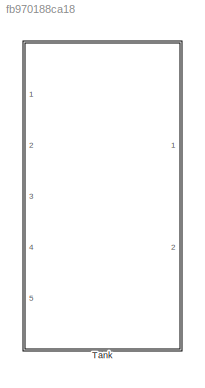
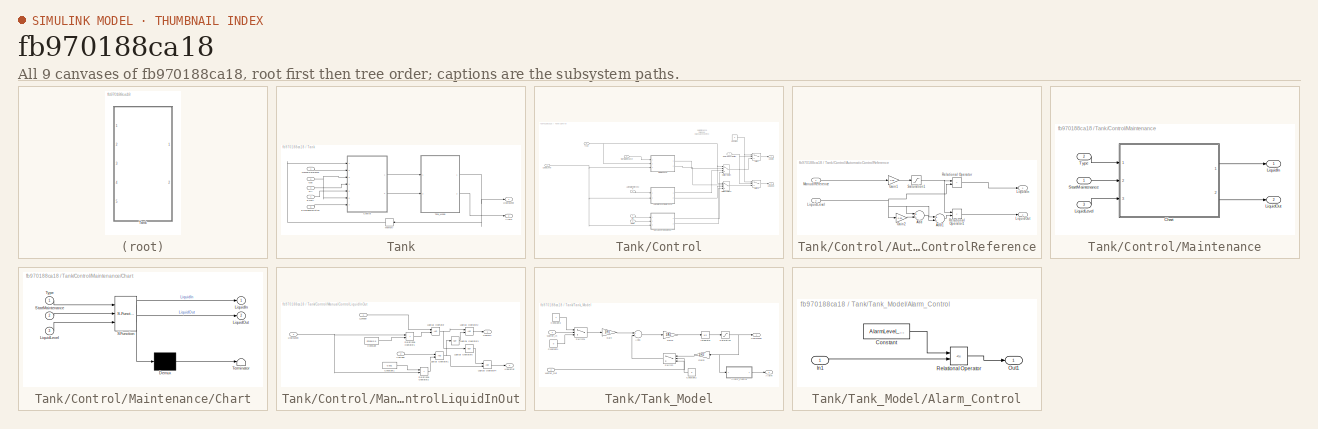
[diagram: thumbnail index - all 9 canvases of the model, root first then tree order]
MODEL slx_fb970188ca18
KIND model
CONFIG AbsTol = auto
CONFIG EnableMultiTasking = off
CONFIG FixedStep = 0.1
CONFIG MaxStep = auto
CONFIG MinStep = auto
CONFIG RelTol = 1e-3
CONFIG SampleTimeConstraint = Unconstrained
CONFIG Solver = FixedStepAuto
CONFIG SolverName = FixedStepAuto
CONFIG StartTime = 0.0
CONFIG StopTime = 300
BLOCK [SubSystem] Tank
  Ports = [5, 2]
  RequestExecContextInheritance = off
  Variant = off
BLOCK [Outport] Tank/Alarm
  IconDisplay = Port number
  Port = 2
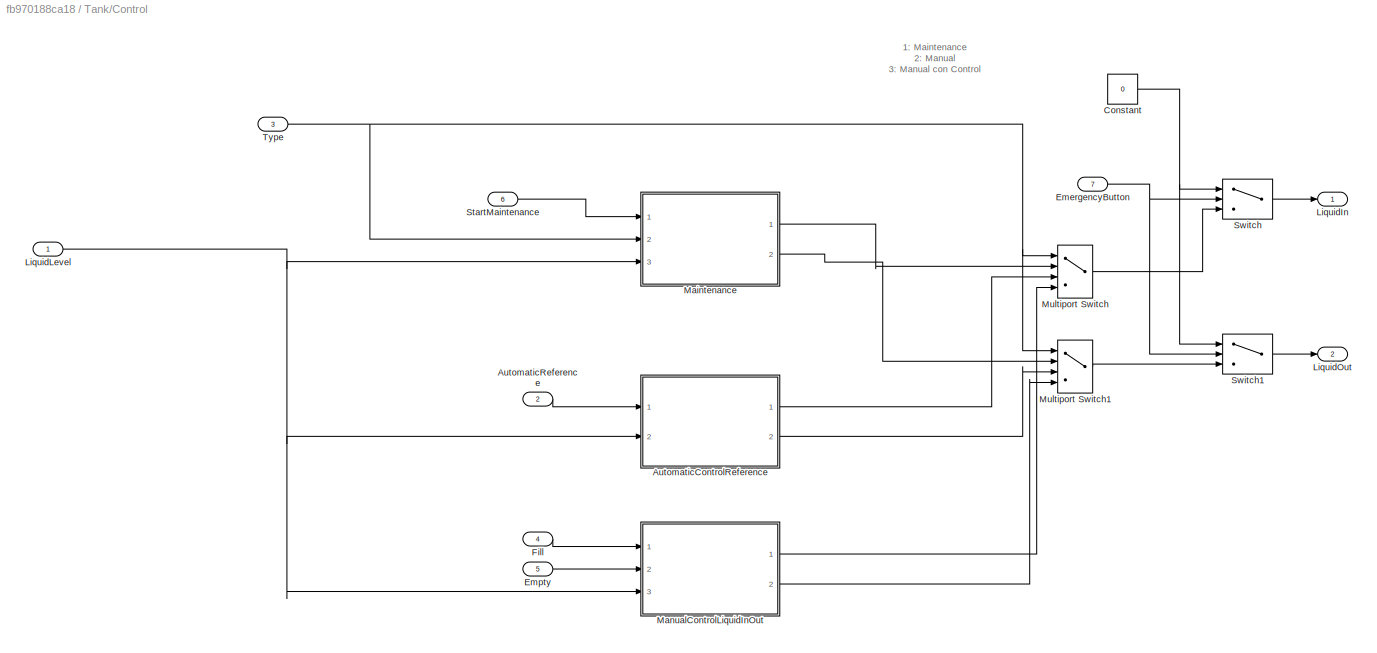
BLOCK [SubSystem] Tank/Control
  Ports = [7, 2]
  RequestExecContextInheritance = off
  Variant = off
BLOCK [SubSystem] Tank/Control/AutomaticControlReference
  Ports = [2, 2]
  RequestExecContextInheritance = off
  Variant = off
BLOCK [Sum] Tank/Control/AutomaticControlReference/Add
  InputSameDT = off
  Inputs = +-
  OutDataTypeStr = Inherit: Inherit via internal rule
  Ports = [2, 1]
  SaturateOnIntegerOverflow = off
BLOCK [Sum] Tank/Control/AutomaticControlReference/Add1
  InputSameDT = off
  Inputs = +-
  OutDataTypeStr = Inherit: Inherit via internal rule
  Ports = [2, 1]
  SaturateOnIntegerOverflow = off
BLOCK [Gain] Tank/Control/AutomaticControlReference/Gain1
  Gain = 0.95
  OutDataTypeStr = Inherit: Inherit via internal rule
  ParamDataTypeStr = Inherit: Inherit via internal rule
  SaturateOnIntegerOverflow = off
BLOCK [Gain] Tank/Control/AutomaticControlReference/Gain2
  Gain = 0.95
  OutDataTypeStr = Inherit: Inherit via internal rule
  ParamDataTypeStr = Inherit: Inherit via internal rule
  SaturateOnIntegerOverflow = off
BLOCK [Outport] Tank/Control/AutomaticControlReference/LiquidIn
  IconDisplay = Port number
BLOCK [Inport] Tank/Control/AutomaticControlReference/LiquidLevel
  IconDisplay = Port number
  Port = 2
BLOCK [Outport] Tank/Control/AutomaticControlReference/LiquidOut
  IconDisplay = Port number
  Port = 2
BLOCK [Inport] Tank/Control/AutomaticControlReference/ManualReference
  IconDisplay = Port number
BLOCK [RelationalOperator] Tank/Control/AutomaticControlReference/Relational Operator
  InputSameDT = off
  Operator = >
  OutDataTypeStr = boolean
  Ports = [2, 1]
  RndMeth = Simplest
BLOCK [RelationalOperator] Tank/Control/AutomaticControlReference/Relational Operator1
  InputSameDT = off
  Operator = <
  OutDataTypeStr = boolean
  Ports = [2, 1]
  RndMeth = Simplest
BLOCK [Saturate] Tank/Control/AutomaticControlReference/Saturation1
  InputPortMap = u0
  LowerLimit = 0
  Ports = [1, 1]
  UpperLimit = hmax*0.9
BLOCK [Inport] Tank/Control/AutomaticReference
  IconDisplay = Port number
  Port = 2
BLOCK [Constant] Tank/Control/Constant
  Value = 0
BLOCK [Inport] Tank/Control/EmergencyButton
  IconDisplay = Port number
  Port = 7
BLOCK [Inport] Tank/Control/Empty
  IconDisplay = Port number
  Port = 5
BLOCK [Inport] Tank/Control/Fill
  IconDisplay = Port number
  Port = 4
BLOCK [Outport] Tank/Control/LiquidIn
  IconDisplay = Port number
BLOCK [Inport] Tank/Control/LiquidLevel
  IconDisplay = Port number
BLOCK [Outport] Tank/Control/LiquidOut
  IconDisplay = Port number
  Port = 2
BLOCK [SubSystem] Tank/Control/Maintenance
  Ports = [3, 2]
  RequestExecContextInheritance = off
  Variant = off
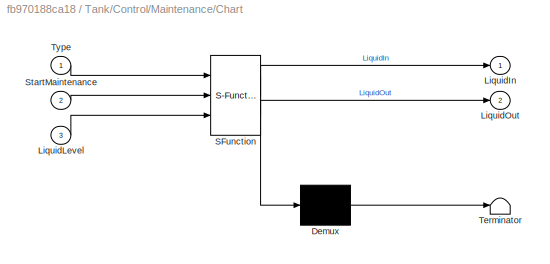
BLOCK [SubSystem] Tank/Control/Maintenance/Chart
  ErrorFcn = Stateflow.Translate.translate
  PermitHierarchicalResolution = ExplicitOnly
  Ports = [3, 2]
  RequestExecContextInheritance = off
  SFBlockType = Chart
  TreatAsAtomicUnit = on
  Variant = off
BLOCK [Demux] Tank/Control/Maintenance/Chart/ Demux 
  Outputs = 1
  Ports = [1, 1]
BLOCK [S-Function] Tank/Control/Maintenance/Chart/ SFunction 
  EnableBusSupport = on
  FunctionName = sf_sfun
  Parameters = hmax
  PortCounts = [3 3]
  Ports = [3, 3]
  SFcnIsStateOwnerBlock = off
  SFunctionDeploymentMode = off
  Tag = Stateflow S-Function TanksModel 3
BLOCK [Terminator] Tank/Control/Maintenance/Chart/ Terminator 
BLOCK [Outport] Tank/Control/Maintenance/Chart/LiquidIn
  IconDisplay = Port number
BLOCK [Inport] Tank/Control/Maintenance/Chart/LiquidLevel
  IconDisplay = Port number
  Port = 3
BLOCK [Outport] Tank/Control/Maintenance/Chart/LiquidOut
  IconDisplay = Port number
  Port = 2
BLOCK [Inport] Tank/Control/Maintenance/Chart/StartMaintenance
  IconDisplay = Port number
  Port = 2
BLOCK [Inport] Tank/Control/Maintenance/Chart/Type
  IconDisplay = Port number
BLOCK [Outport] Tank/Control/Maintenance/LiquidIn
  IconDisplay = Port number
BLOCK [Inport] Tank/Control/Maintenance/LiquidLevel
  IconDisplay = Port number
  Port = 3
BLOCK [Outport] Tank/Control/Maintenance/LiquidOut
  IconDisplay = Port number
  Port = 2
BLOCK [Inport] Tank/Control/Maintenance/StartMaintenance
  IconDisplay = Port number
BLOCK [Inport] Tank/Control/Maintenance/Type
  IconDisplay = Port number
  Port = 2
BLOCK [SubSystem] Tank/Control/ManualControlLiquidInOut
  Ports = [3, 2]
  RequestExecContextInheritance = off
  Variant = off
BLOCK [Constant] Tank/Control/ManualControlLiquidInOut/Constant
  Value = hmax*0.9
BLOCK [Constant] Tank/Control/ManualControlLiquidInOut/Constant1
  Value = 0.001
BLOCK [Inport] Tank/Control/ManualControlLiquidInOut/LLenado
  IconDisplay = Port number
BLOCK [Outport] Tank/Control/ManualControlLiquidInOut/LiquidIn
  IconDisplay = Port number
BLOCK [Inport] Tank/Control/ManualControlLiquidInOut/LiquidLevel
  IconDisplay = Port number
  Port = 3
BLOCK [Outport] Tank/Control/ManualControlLiquidInOut/LiquidOut
  IconDisplay = Port number
  Port = 2
BLOCK [Logic] Tank/Control/ManualControlLiquidInOut/Logical Operator
  AllPortsSameDT = off
  OutDataTypeStr = boolean
  Ports = [2, 1]
BLOCK [Logic] Tank/Control/ManualControlLiquidInOut/Logical Operator1
  AllPortsSameDT = off
  OutDataTypeStr = boolean
  Ports = [2, 1]
BLOCK [Logic] Tank/Control/ManualControlLiquidInOut/Logical Operator2
  AllPortsSameDT = off
  OutDataTypeStr = boolean
  Ports = [2, 1]
BLOCK [Logic] Tank/Control/ManualControlLiquidInOut/Logical Operator3
  AllPortsSameDT = off
  Operator = NOT
  OutDataTypeStr = boolean
  Ports = [1, 1]
BLOCK [Logic] Tank/Control/ManualControlLiquidInOut/Logical Operator4
  AllPortsSameDT = off
  OutDataTypeStr = boolean
  Ports = [2, 1]
BLOCK [Logic] Tank/Control/ManualControlLiquidInOut/Logical Operator5
  AllPortsSameDT = off
  Operator = NOT
  OutDataTypeStr = boolean
  Ports = [1, 1]
BLOCK [RelationalOperator] Tank/Control/ManualControlLiquidInOut/Relational Operator1
  InputSameDT = off
  Operator = <
  OutDataTypeStr = boolean
  Ports = [2, 1]
  RndMeth = Simplest
BLOCK [RelationalOperator] Tank/Control/ManualControlLiquidInOut/Relational Operator2
  InputSameDT = off
  Operator = <
  OutDataTypeStr = boolean
  Ports = [2, 1]
  RndMeth = Simplest
BLOCK [Inport] Tank/Control/ManualControlLiquidInOut/Vaciado
  IconDisplay = Port number
  Port = 2
BLOCK [MultiPortSwitch] Tank/Control/Multiport Switch
  InputSameDT = off
  Ports = [4, 1]
  SaturateOnIntegerOverflow = off
BLOCK [MultiPortSwitch] Tank/Control/Multiport Switch1
  InputSameDT = off
  Ports = [4, 1]
  SaturateOnIntegerOverflow = off
BLOCK [Inport] Tank/Control/StartMaintenance
  IconDisplay = Port number
  Port = 6
BLOCK [Switch] Tank/Control/Switch
  Criteria = u2 > Threshold
  InputSameDT = off
  SaturateOnIntegerOverflow = off
BLOCK [Switch] Tank/Control/Switch1
  Criteria = u2 > Threshold
  InputSameDT = off
  SaturateOnIntegerOverflow = off
BLOCK [Inport] Tank/Control/Type
  IconDisplay = Port number
  Port = 3
BLOCK [Inport] Tank/EmergencyButton
  IconDisplay = Port number
  Port = 5
BLOCK [Inport] Tank/Empty
  IconDisplay = Port number
  Port = 4
BLOCK [Inport] Tank/Fill
  IconDisplay = Port number
  Port = 3
BLOCK [Outport] Tank/LiquidLevel
  IconDisplay = Port number
BLOCK [Inport] Tank/ManualReference
  IconDisplay = Port number
BLOCK [Memory] Tank/Memory
BLOCK [SubSystem] Tank/Tank_Model
  Ports = [2, 2]
  RequestExecContextInheritance = off
  Variant = off
BLOCK [Sum] Tank/Tank_Model/Add1
  InputSameDT = off
  Inputs = +-
  OutDataTypeStr = Inherit: Inherit via internal rule
  Ports = [2, 1]
  SaturateOnIntegerOverflow = off
BLOCK [Outport] Tank/Tank_Model/Alarm
  IconDisplay = Port number
  Port = 2
BLOCK [SubSystem] Tank/Tank_Model/Alarm_Control
  Ports = [1, 1]
  RequestExecContextInheritance = off
  Variant = off
BLOCK [Constant] Tank/Tank_Model/Alarm_Control/Constant
  Value = AlarmLevel_NF
BLOCK [Inport] Tank/Tank_Model/Alarm_Control/In1
  IconDisplay = Port number
BLOCK [Outport] Tank/Tank_Model/Alarm_Control/Out1
  IconDisplay = Port number
BLOCK [RelationalOperator] Tank/Tank_Model/Alarm_Control/Relational Operator
  InputSameDT = off
  Operator = <=
  OutDataTypeStr = boolean
  Ports = [2, 1]
  RndMeth = Simplest
BLOCK [Constant] Tank/Tank_Model/Constant1
  Value = 0
BLOCK [Constant] Tank/Tank_Model/Constant2
  Value = 0
BLOCK [Constant] Tank/Tank_Model/Constant3
BLOCK [Gain] Tank/Tank_Model/Gain
  Gain = 1/R1
  OutDataTypeStr = Inherit: Inherit via internal rule
  ParamDataTypeStr = Inherit: Inherit via internal rule
  SaturateOnIntegerOverflow = off
BLOCK [Gain] Tank/Tank_Model/Gain1
  Gain = 1/A1
  OutDataTypeStr = Inherit: Inherit via internal rule
  ParamDataTypeStr = Inherit: Inherit via internal rule
  SaturateOnIntegerOverflow = off
BLOCK [Gain] Tank/Tank_Model/Gain2
  Gain = 1/R2
  OutDataTypeStr = Inherit: Inherit via internal rule
  ParamDataTypeStr = Inherit: Inherit via internal rule
  SaturateOnIntegerOverflow = off
BLOCK [Integrator] Tank/Tank_Model/Integrator
  Ports = [1, 1]
BLOCK [Outport] Tank/Tank_Model/LiquidLevel
  IconDisplay = Port number
BLOCK [Saturate] Tank/Tank_Model/Saturation
  InputPortMap = u0
  LowerLimit = 0
  Ports = [1, 1]
  UpperLimit = hmax
BLOCK [Switch] Tank/Tank_Model/Switch
  Criteria = u2 ~= 0
  InputSameDT = off
  SaturateOnIntegerOverflow = off
BLOCK [Switch] Tank/Tank_Model/Switch1
  Criteria = u2 ~= 0
  InputSameDT = off
  SaturateOnIntegerOverflow = off
BLOCK [Inport] Tank/Tank_Model/Watter_In
  IconDisplay = Port number
BLOCK [Inport] Tank/Tank_Model/Watter_Out
  IconDisplay = Port number
  Port = 2
BLOCK [Inport] Tank/Type
  IconDisplay = Port number
  Port = 2
ANNOTATION Tank/Control: 1: Maintenance 2: Manual 3: Manual con Control
LINE Tank/Control/AutomaticControlReference/Add1:1 -> Tank/Control/AutomaticControlReference/Relational Operator1:2
LINE Tank/Control/AutomaticControlReference/Add:1 -> Tank/Control/AutomaticControlReference/Add1:2
LINE Tank/Control/AutomaticControlReference/Gain1:1 -> Tank/Control/AutomaticControlReference/Saturation1:1
LINE Tank/Control/AutomaticControlReference/Gain2:1 -> Tank/Control/AutomaticControlReference/Add:2
NET Tank/Control/AutomaticControlReference/LiquidLevel:1 -> Tank/Control/AutomaticControlReference/Add1:1, Tank/Control/AutomaticControlReference/Add:1, Tank/Control/AutomaticControlReference/Gain2:1, Tank/Control/AutomaticControlReference/Relational Operator:2
LINE Tank/Control/AutomaticControlReference/ManualReference:1 -> Tank/Control/AutomaticControlReference/Gain1:1
LINE Tank/Control/AutomaticControlReference/Relational Operator1:1 -> Tank/Control/AutomaticControlReference/LiquidOut:1
LINE Tank/Control/AutomaticControlReference/Relational Operator:1 -> Tank/Control/AutomaticControlReference/LiquidIn:1
NET Tank/Control/AutomaticControlReference/Saturation1:1 -> Tank/Control/AutomaticControlReference/Relational Operator1:1, Tank/Control/AutomaticControlReference/Relational Operator:1
LINE Tank/Control/AutomaticControlReference:1 -> Tank/Control/Multiport Switch:3
LINE Tank/Control/AutomaticControlReference:2 -> Tank/Control/Multiport Switch1:3
LINE Tank/Control/AutomaticReference:1 -> Tank/Control/AutomaticControlReference:1
NET Tank/Control/Constant:1 -> Tank/Control/Switch1:1, Tank/Control/Switch:1
NET Tank/Control/EmergencyButton:1 -> Tank/Control/Switch1:2, Tank/Control/Switch:2
LINE Tank/Control/Empty:1 -> Tank/Control/ManualControlLiquidInOut:2
LINE Tank/Control/Fill:1 -> Tank/Control/ManualControlLiquidInOut:1
NET Tank/Control/LiquidLevel:1 -> Tank/Control/AutomaticControlReference:2, Tank/Control/Maintenance:3, Tank/Control/ManualControlLiquidInOut:3
LINE Tank/Control/Maintenance/Chart:1 -> Tank/Control/Maintenance/LiquidIn:1
LINE Tank/Control/Maintenance/Chart:2 -> Tank/Control/Maintenance/LiquidOut:1
LINE Tank/Control/Maintenance/LiquidLevel:1 -> Tank/Control/Maintenance/Chart:3
LINE Tank/Control/Maintenance/StartMaintenance:1 -> Tank/Control/Maintenance/Chart:2
LINE Tank/Control/Maintenance/Type:1 -> Tank/Control/Maintenance/Chart:1
LINE Tank/Control/Maintenance:1 -> Tank/Control/Multiport Switch:2
LINE Tank/Control/Maintenance:2 -> Tank/Control/Multiport Switch1:2
LINE Tank/Control/ManualControlLiquidInOut/Constant1:1 -> Tank/Control/ManualControlLiquidInOut/Relational Operator2:1
LINE Tank/Control/ManualControlLiquidInOut/Constant:1 -> Tank/Control/ManualControlLiquidInOut/Relational Operator1:2
LINE Tank/Control/ManualControlLiquidInOut/LLenado:1 -> Tank/Control/ManualControlLiquidInOut/Logical Operator:1
NET Tank/Control/ManualControlLiquidInOut/LiquidLevel:1 -> Tank/Control/ManualControlLiquidInOut/Relational Operator1:1, Tank/Control/ManualControlLiquidInOut/Relational Operator2:2
NET Tank/Control/ManualControlLiquidInOut/Logical Operator1:1 -> Tank/Control/ManualControlLiquidInOut/Logical Operator3:1, Tank/Control/ManualControlLiquidInOut/Logical Operator4:2
LINE Tank/Control/ManualControlLiquidInOut/Logical Operator2:1 -> Tank/Control/ManualControlLiquidInOut/LiquidIn:1
LINE Tank/Control/ManualControlLiquidInOut/Logical Operator3:1 -> Tank/Control/ManualControlLiquidInOut/Logical Operator2:2
LINE Tank/Control/ManualControlLiquidInOut/Logical Operator4:1 -> Tank/Control/ManualControlLiquidInOut/LiquidOut:1
LINE Tank/Control/ManualControlLiquidInOut/Logical Operator5:1 -> Tank/Control/ManualControlLiquidInOut/Logical Operator4:1
NET Tank/Control/ManualControlLiquidInOut/Logical Operator:1 -> Tank/Control/ManualControlLiquidInOut/Logical Operator2:1, Tank/Control/ManualControlLiquidInOut/Logical Operator5:1
LINE Tank/Control/ManualControlLiquidInOut/Relational Operator1:1 -> Tank/Control/ManualControlLiquidInOut/Logical Operator:2
LINE Tank/Control/ManualControlLiquidInOut/Relational Operator2:1 -> Tank/Control/ManualControlLiquidInOut/Logical Operator1:2
LINE Tank/Control/ManualControlLiquidInOut/Vaciado:1 -> Tank/Control/ManualControlLiquidInOut/Logical Operator1:1
LINE Tank/Control/ManualControlLiquidInOut:1 -> Tank/Control/Multiport Switch:4
LINE Tank/Control/ManualControlLiquidInOut:2 -> Tank/Control/Multiport Switch1:4
LINE Tank/Control/Multiport Switch1:1 -> Tank/Control/Switch1:3
LINE Tank/Control/Multiport Switch:1 -> Tank/Control/Switch:3
LINE Tank/Control/StartMaintenance:1 -> Tank/Control/Maintenance:1
LINE Tank/Control/Switch1:1 -> Tank/Control/LiquidOut:1
LINE Tank/Control/Switch:1 -> Tank/Control/LiquidIn:1
NET Tank/Control/Type:1 -> Tank/Control/Maintenance:2, Tank/Control/Multiport Switch1:1, Tank/Control/Multiport Switch:1
LINE Tank/Control:1 -> Tank/Tank_Model:1
LINE Tank/Control:2 -> Tank/Tank_Model:2
LINE Tank/EmergencyButton:1 -> Tank/Control:7
LINE Tank/Empty:1 -> Tank/Control:5
LINE Tank/Fill:1 -> Tank/Control:4
LINE Tank/ManualReference:1 -> Tank/Control:2
LINE Tank/Memory:1 -> Tank/Control:1
LINE Tank/Tank_Model/Add1:1 -> Tank/Tank_Model/Gain1:1
LINE Tank/Tank_Model/Alarm_Control/Constant:1 -> Tank/Tank_Model/Alarm_Control/Relational Operator:1
LINE Tank/Tank_Model/Alarm_Control/In1:1 -> Tank/Tank_Model/Alarm_Control/Relational Operator:2
LINE Tank/Tank_Model/Alarm_Control/Relational Operator:1 -> Tank/Tank_Model/Alarm_Control/Out1:1
LINE Tank/Tank_Model/Alarm_Control:1 -> Tank/Tank_Model/Alarm:1
LINE Tank/Tank_Model/Constant1:1 -> Tank/Tank_Model/Switch1:3
LINE Tank/Tank_Model/Constant2:1 -> Tank/Tank_Model/Switch:3
LINE Tank/Tank_Model/Constant3:1 -> Tank/Tank_Model/Switch1:1
LINE Tank/Tank_Model/Gain1:1 -> Tank/Tank_Model/Integrator:1
LINE Tank/Tank_Model/Gain2:1 -> Tank/Tank_Model/Switch:1
LINE Tank/Tank_Model/Gain:1 -> Tank/Tank_Model/Add1:1
LINE Tank/Tank_Model/Integrator:1 -> Tank/Tank_Model/Saturation:1
NET Tank/Tank_Model/Saturation:1 -> Tank/Tank_Model/Alarm_Control:1, Tank/Tank_Model/Gain2:1, Tank/Tank_Model/LiquidLevel:1
LINE Tank/Tank_Model/Switch1:1 -> Tank/Tank_Model/Gain:1
LINE Tank/Tank_Model/Switch:1 -> Tank/Tank_Model/Add1:2
LINE Tank/Tank_Model/Watter_In:1 -> Tank/Tank_Model/Switch1:2
LINE Tank/Tank_Model/Watter_Out:1 -> Tank/Tank_Model/Switch:2
NET Tank/Tank_Model:1 -> Tank/LiquidLevel:1, Tank/Memory:1
LINE Tank/Tank_Model:2 -> Tank/Alarm:1
NET Tank/Type:1 -> Tank/Control:3, Tank/Control:6
note: NET lines group one-source signal fan-out (src -> all destinations, sorted); 1:1 wires keep LINE
CHART Tank/Control/Maintenance/Chart states=4 transitions=7
  STATE_LABEL 'InitialState\nentry: LiquidIn = 0;\n LiquidOut = 0;'
  STATE_LABEL 'Step1\nentry: LiquidIn = 0;\n LiquidOut = 1;'
  STATE_LABEL 'Step2\nentry: LiquidIn = 1;\n LiquidOut = 0;'
  STATE_LABEL 'Step3\nentry: LiquidIn = 0;\n LiquidOut = 1;'
